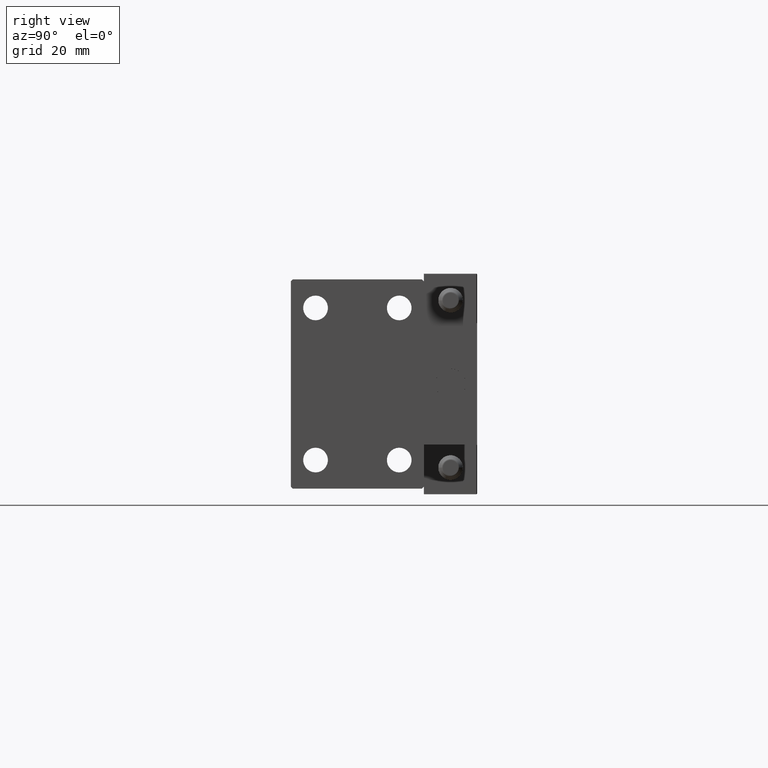
[diagram: clean part render]
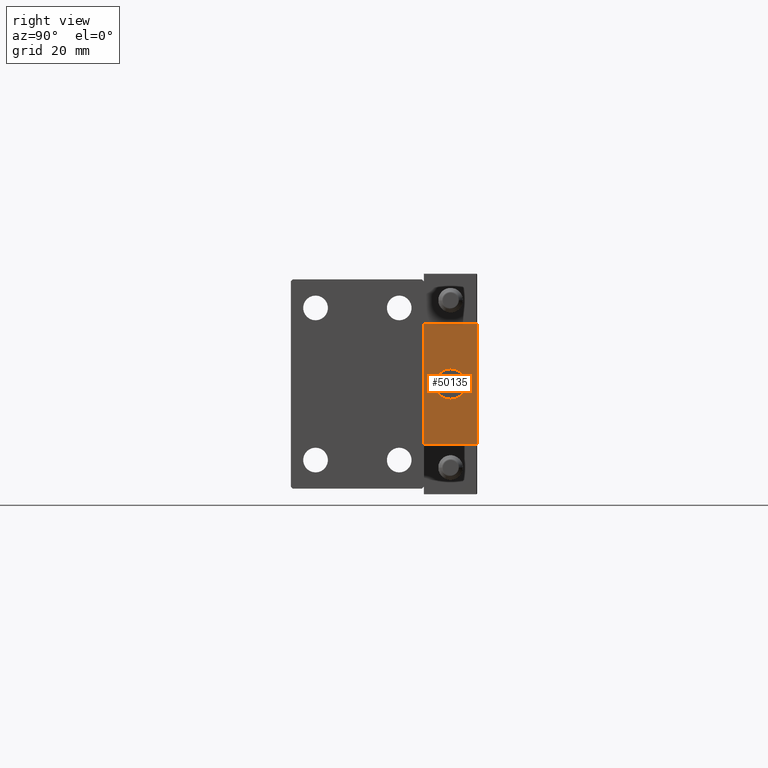
[diagram: same view with one face highlighted and labeled with its STEP entity id]
A machine part, right view. The second image highlights one B-rep face of the part: STEP entity #50135.
In plain terms, the highlighted planar face has unit normal (-1, 0, 0).
Its self-contained STEP definition (entity closure, byte-faithful):
#147 = AXIS2_PLACEMENT_3D ( 'NONE', #21483, #32776, #28413 ) ;
#235 = VERTEX_POINT ( 'NONE', #13777 ) ;
#979 = CARTESIAN_POINT ( 'NONE',  ( 10.00000000000000000, 0.000000000000000000, 0.000000000000000000 ) ) ;
#1044 = ORIENTED_EDGE ( 'NONE', *, *, #27698, .T. ) ;
#1870 = AXIS2_PLACEMENT_3D ( 'NONE', #14300, #6630, #13798 ) ;
#1924 = VERTEX_POINT ( 'NONE', #19906 ) ;
#2318 = CARTESIAN_POINT ( 'NONE',  ( 10.00000000000000000, -7.000000000000000000, 15.99999999999999289 ) ) ;
#3845 = EDGE_CURVE ( 'NONE', #13397, #1924, #41103, .T. ) ;
#5050 = CIRCLE ( 'NONE', #147, 4.000000000000000000 ) ;
#5076 = DIRECTION ( 'NONE',  ( -1.000000000000000000, 0.000000000000000000, -0.000000000000000000 ) ) ;
#6630 = DIRECTION ( 'NONE',  ( -1.000000000000000000, 0.000000000000000000, 0.000000000000000000 ) ) ;
#6774 = CARTESIAN_POINT ( 'NONE',  ( 10.00000000000000000, 7.000000000000000000, 15.99999999999999289 ) ) ;
#7386 = EDGE_CURVE ( 'NONE', #1924, #39231, #25642, .T. ) ;
#8912 = FACE_BOUND ( 'NONE', #15986, .T. ) ;
#9344 = LINE ( 'NONE', #24486, #31038 ) ;
#12248 = FACE_OUTER_BOUND ( 'NONE', #37927, .T. ) ;
#12308 = ORIENTED_EDGE ( 'NONE', *, *, #18775, .F. ) ;
#12432 = DIRECTION ( 'NONE',  ( 0.000000000000000000, 0.000000000000000000, -1.000000000000000000 ) ) ;
#12911 = VECTOR ( 'NONE', #29380, 1000.000000000000000 ) ;
#13397 = VERTEX_POINT ( 'NONE', #24660 ) ;
#13777 = CARTESIAN_POINT ( 'NONE',  ( 10.00000000000000000, 4.898587196589412829E-16, -4.000000000000000000 ) ) ;
#13798 = DIRECTION ( 'NONE',  ( 0.000000000000000000, 0.000000000000000000, 1.000000000000000000 ) ) ;
#14300 = CARTESIAN_POINT ( 'NONE',  ( 10.00000000000000000, 0.000000000000000000, 0.000000000000000000 ) ) ;
#15986 = EDGE_LOOP ( 'NONE', ( #41611, #1044 ) ) ;
#18246 = ORIENTED_EDGE ( 'NONE', *, *, #35344, .F. ) ;
#18775 = EDGE_CURVE ( 'NONE', #13397, #40847, #9344, .T. ) ;
#19051 = CIRCLE ( 'NONE', #1870, 4.000000000000000000 ) ;
#19906 = CARTESIAN_POINT ( 'NONE',  ( 10.00000000000000000, -7.000000000000000000, 15.99999999999999289 ) ) ;
#21483 = CARTESIAN_POINT ( 'NONE',  ( 10.00000000000000000, 0.000000000000000000, 0.000000000000000000 ) ) ;
#21894 = DIRECTION ( 'NONE',  ( 0.000000000000000000, -1.000000000000000000, 0.000000000000000000 ) ) ;
#24486 = CARTESIAN_POINT ( 'NONE',  ( 10.00000000000000000, 7.000000000000000000, 15.99999999999999289 ) ) ;
#24660 = CARTESIAN_POINT ( 'NONE',  ( 10.00000000000000000, 7.000000000000000000, 15.99999999999999289 ) ) ;
#25642 = LINE ( 'NONE', #2318, #34840 ) ;
#26004 = CARTESIAN_POINT ( 'NONE',  ( 10.00000000000000000, 0.000000000000000000, 4.000000000000000000 ) ) ;
#26821 = EDGE_CURVE ( 'NONE', #48705, #235, #19051, .T. ) ;
#27667 = ORIENTED_EDGE ( 'NONE', *, *, #3845, .T. ) ;
#27698 = EDGE_CURVE ( 'NONE', #235, #48705, #5050, .T. ) ;
#28413 = DIRECTION ( 'NONE',  ( 0.000000000000000000, 0.000000000000000000, 1.000000000000000000 ) ) ;
#29123 = LINE ( 'NONE', #36325, #12911 ) ;
#29380 = DIRECTION ( 'NONE',  ( 0.000000000000000000, -1.000000000000000000, 0.000000000000000000 ) ) ;
#31038 = VECTOR ( 'NONE', #12432, 1000.000000000000000 ) ;
#32776 = DIRECTION ( 'NONE',  ( -1.000000000000000000, 0.000000000000000000, 0.000000000000000000 ) ) ;
#34840 = VECTOR ( 'NONE', #48696, 1000.000000000000000 ) ;
#35344 = EDGE_CURVE ( 'NONE', #40847, #39231, #29123, .T. ) ;
#35854 = DIRECTION ( 'NONE',  ( -0.000000000000000000, 0.000000000000000000, 1.000000000000000000 ) ) ;
#36325 = CARTESIAN_POINT ( 'NONE',  ( 10.00000000000000000, 7.000000000000000000, -16.00000000000000711 ) ) ;
#37049 = CARTESIAN_POINT ( 'NONE',  ( 10.00000000000000000, -7.000000000000000000, -16.00000000000000711 ) ) ;
#37927 = EDGE_LOOP ( 'NONE', ( #41674, #18246, #12308, #27667 ) ) ;
#39231 = VERTEX_POINT ( 'NONE', #37049 ) ;
#40421 = PLANE ( 'NONE',  #44291 ) ;
#40776 = VECTOR ( 'NONE', #21894, 1000.000000000000000 ) ;
#40847 = VERTEX_POINT ( 'NONE', #49715 ) ;
#41103 = LINE ( 'NONE', #6774, #40776 ) ;
#41611 = ORIENTED_EDGE ( 'NONE', *, *, #26821, .T. ) ;
#41674 = ORIENTED_EDGE ( 'NONE', *, *, #7386, .T. ) ;
#44291 = AXIS2_PLACEMENT_3D ( 'NONE', #979, #5076, #35854 ) ;
#48696 = DIRECTION ( 'NONE',  ( 0.000000000000000000, 0.000000000000000000, -1.000000000000000000 ) ) ;
#48705 = VERTEX_POINT ( 'NONE', #26004 ) ;
#49715 = CARTESIAN_POINT ( 'NONE',  ( 10.00000000000000000, 7.000000000000000000, -16.00000000000000711 ) ) ;
#50135 = ADVANCED_FACE ( 'NONE', ( #8912, #12248 ), #40421, .F. ) ;